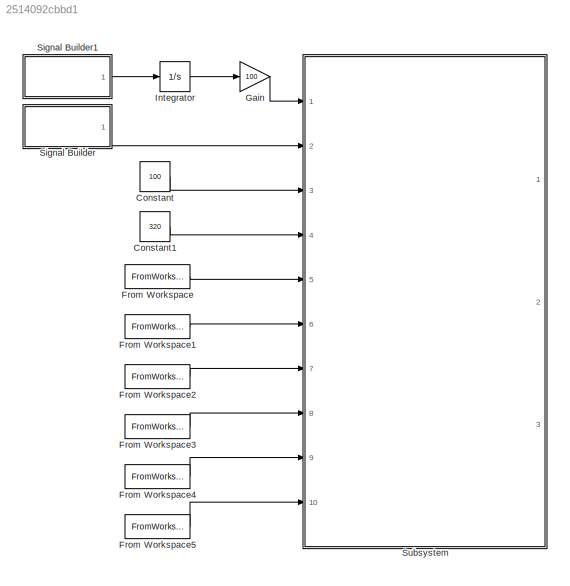
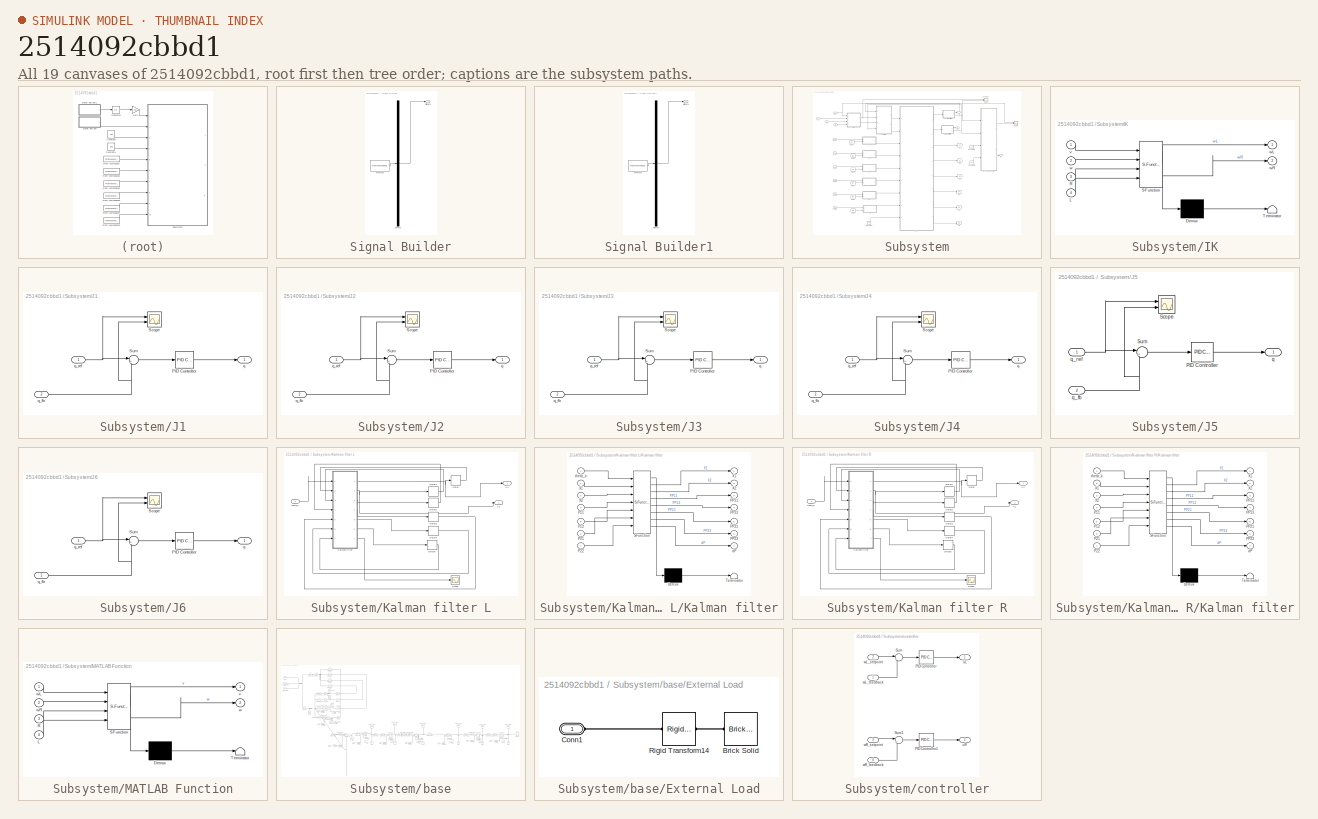
[diagram: thumbnail index - all 19 canvases of the model, root first then tree order]
MODEL slx_2514092cbbd1
KIND model
CONFIG AbsTol = auto
CONFIG EnableMultiTasking = off
CONFIG FixedStep = 0.00005
CONFIG MaxStep = auto
CONFIG MinStep = auto
CONFIG RelTol = 1e-3
CONFIG SampleTimeConstraint = Unconstrained
CONFIG SolverName = FixedStepAuto
CONFIG StartTime = 0.0
CONFIG StopTime = 6
BLOCK [Constant] Constant
  Value = 100
BLOCK [Constant] Constant1
  Value = 320
BLOCK [FromWorkspace] From Workspace
  VariableName = q1dsim
BLOCK [FromWorkspace] From Workspace1
  VariableName = q2dsim
BLOCK [FromWorkspace] From Workspace2
  VariableName = q3dsim
BLOCK [FromWorkspace] From Workspace3
  VariableName = q4dsim
BLOCK [FromWorkspace] From Workspace4
  VariableName = q5dsim
BLOCK [FromWorkspace] From Workspace5
  VariableName = q6dsim
BLOCK [Gain] Gain
  Gain = 100
BLOCK [Integrator] Integrator
  Ports = [1, 1]
BLOCK [SubSystem] Signal Builder
  ClipboardFcn = sigbuilder_block('clipboard');
  CloseFcn = sigbuilder_block('close');
  ContinueFcn = sigbuilder_block('continue');
  CopyFcn = sigbuilder_block('copy');
  DeleteFcn = sigbuilder_block('delete');
  LoadFcn = sigbuilder_block('load');
  MaskHideContents = on
  ModelCloseFcn = sigbuilder_block('modelClose');
  NameChangeFcn = sigbuilder_block('namechange');
  OpenFcn = sigbuilder_block('open',[543 204.75 550.5 399.75 ]);
  PauseFcn = sigbuilder_block('pause');
  Ports = [0, 1]
  PreSaveFcn = sigbuilder_block('preSave');
  RequestExecContextInheritance = off
  StartFcn = sigbuilder_block('start');
  StopFcn = sigbuilder_block('stop');
  Tag = STV Subsys
BLOCK [Demux] Signal Builder/Demux
  DisplayOption = none
  Outputs = 1
  Ports = [1, 1]
  Tag = STV Demux
BLOCK [FromWorkspace] Signal Builder/FromWs
  Tag = STV FromWs
  VariableName = tuvar
BLOCK [Outport] Signal Builder/Signal 1
  Tag = STV Outport
BLOCK [SubSystem] Signal Builder1
  ClipboardFcn = sigbuilder_block('clipboard');
  CloseFcn = sigbuilder_block('close');
  ContinueFcn = sigbuilder_block('continue');
  CopyFcn = sigbuilder_block('copy');
  DeleteFcn = sigbuilder_block('delete');
  LoadFcn = sigbuilder_block('load');
  MaskHideContents = on
  ModelCloseFcn = sigbuilder_block('modelClose');
  NameChangeFcn = sigbuilder_block('namechange');
  OpenFcn = sigbuilder_block('open',[543 204.75 550.5 399.75 ]);
  PauseFcn = sigbuilder_block('pause');
  Ports = [0, 1]
  PreSaveFcn = sigbuilder_block('preSave');
  RequestExecContextInheritance = off
  StartFcn = sigbuilder_block('start');
  StopFcn = sigbuilder_block('stop');
  Tag = STV Subsys
BLOCK [Demux] Signal Builder1/Demux
  DisplayOption = none
  Outputs = 1
  Ports = [1, 1]
  Tag = STV Demux
BLOCK [FromWorkspace] Signal Builder1/FromWs
  Tag = STV FromWs
  VariableName = tuvar
BLOCK [Outport] Signal Builder1/Signal 1
  Tag = STV Outport
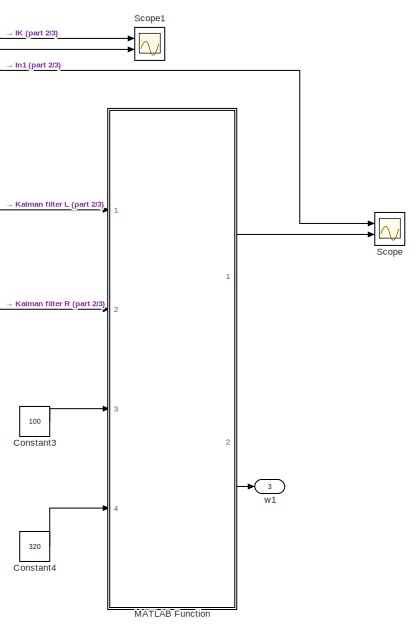
[diagram: Subsystem - part 1/3, top right region]
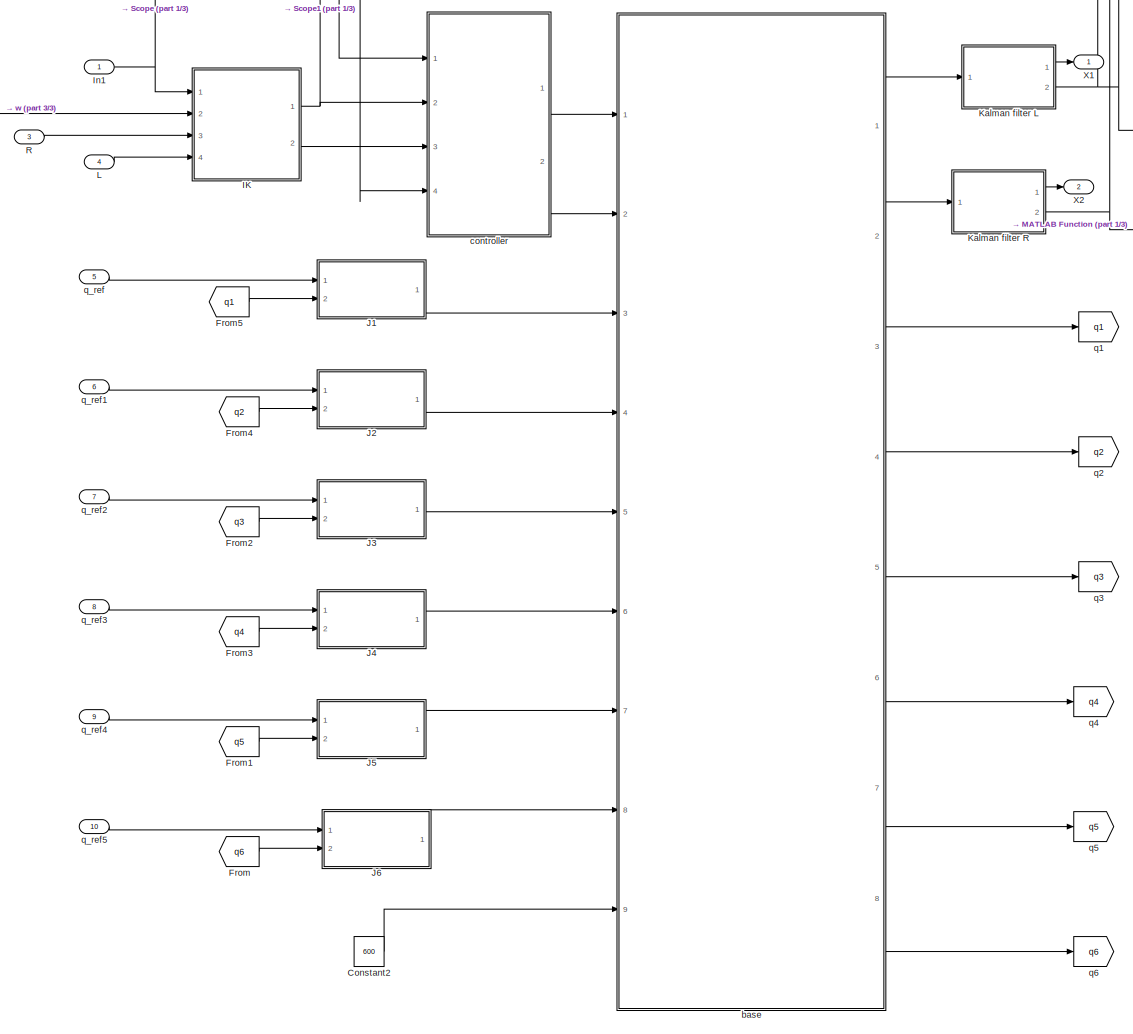
[diagram: Subsystem - part 2/3, center side, full height]
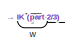
[diagram: Subsystem - part 3/3, top left region]
BLOCK [SubSystem] Subsystem
  Ports = [10, 3]
  RequestExecContextInheritance = off
BLOCK [Constant] Subsystem/Constant2
  Value = 600
BLOCK [Constant] Subsystem/Constant3
  Value = 100
BLOCK [Constant] Subsystem/Constant4
  Value = 320
BLOCK [From] Subsystem/From
  GotoTag = q6
BLOCK [From] Subsystem/From1
  GotoTag = q5
BLOCK [From] Subsystem/From2
  GotoTag = q3
BLOCK [From] Subsystem/From3
  GotoTag = q4
BLOCK [From] Subsystem/From4
  GotoTag = q2
BLOCK [From] Subsystem/From5
  GotoTag = q1
BLOCK [SubSystem] Subsystem/IK
  ErrorFcn = Stateflow.Translate.translate
  PermitHierarchicalResolution = ExplicitOnly
  Ports = [4, 2]
  RequestExecContextInheritance = off
  SFBlockType = MATLAB Function
  TreatAsAtomicUnit = on
BLOCK [Demux] Subsystem/IK/ Demux 
  Outputs = 1
  Ports = [1, 1]
BLOCK [S-Function] Subsystem/IK/ SFunction 
  EnableBusSupport = on
  FunctionName = sf_sfun
  PortCounts = [4 3]
  Ports = [4, 3]
  SFcnIsStateOwnerBlock = off
  SFunctionDeploymentMode = off
  Tag = Stateflow S-Function 2
BLOCK [Terminator] Subsystem/IK/ Terminator 
BLOCK [Inport] Subsystem/IK/L
  Port = 4
BLOCK [Inport] Subsystem/IK/R
  Port = 3
BLOCK [Inport] Subsystem/IK/v
BLOCK [Inport] Subsystem/IK/w
  Port = 2
BLOCK [Outport] Subsystem/IK/wL
BLOCK [Outport] Subsystem/IK/wR
  Port = 2
BLOCK [Inport] Subsystem/In1
BLOCK [SubSystem] Subsystem/J1
  Ports = [2, 1]
  RequestExecContextInheritance = off
BLOCK [Reference] Subsystem/J1/PID Controller  REF=slpidlib/PID Controller
  Ports = [1, 1]
  SourceBlock = slpidlib/PID Controller
  SourceProductBaseCode = SL
  SourceType = PID 1dof
BLOCK [Scope] Subsystem/J1/Scope
  Floating = off
  NumInputPorts = 2
  Ports = [2]
  ScopeSpecificationString = Simulink.scopes.TimeScopeBlockCfg('CurrentConfiguration', extmgr.ConfigurationSet(extmgr.Configuration('Core','General UI',true),extmgr.Configuration('Core','Source UI',true),extmgr.Configuration('Sources','WiredSimulink',true),extmgr.Configuration('Visuals','Time Domain',true,'SerializedDisplays',{struct('MinYLimReal','-0.13088','MaxYLimReal','1.17788','YLabelReal','','MinYLimMag','0.00000','MaxY...<+1428ch>  <repeated x4 — deduplicated; at blocks: Scope>
BLOCK [Sum] Subsystem/J1/Sum
  Inputs = |+-
  Ports = [2, 1]
BLOCK [Outport] Subsystem/J1/q
BLOCK [Inport] Subsystem/J1/q_fb
  Port = 2
BLOCK [Inport] Subsystem/J1/q_ref
BLOCK [SubSystem] Subsystem/J2
  Ports = [2, 1]
  RequestExecContextInheritance = off
BLOCK [Reference] Subsystem/J2/PID Controller  REF=slpidlib/PID Controller
  Ports = [1, 1]
  SourceBlock = slpidlib/PID Controller
  SourceProductBaseCode = SL
  SourceType = PID 1dof
BLOCK [Scope] Subsystem/J2/Scope
  Floating = off
  NumInputPorts = 2
  Ports = [2]
  ScopeSpecificationString = Simulink.scopes.TimeScopeBlockCfg('CurrentConfiguration', extmgr.ConfigurationSet(extmgr.Configuration('Core','General UI',true),extmgr.Configuration('Core','Source UI',true),extmgr.Configuration('Sources','WiredSimulink',true),extmgr.Configuration('Visuals','Time Domain',true,'SerializedDisplays',{struct('MinYLimReal','-1.17788','MaxYLimReal','0.13088','YLabelReal','','MinYLimMag','0.00000','MaxY...<+1428ch>
BLOCK [Sum] Subsystem/J2/Sum
  Inputs = |+-
  Ports = [2, 1]
BLOCK [Outport] Subsystem/J2/q
BLOCK [Inport] Subsystem/J2/q_fb
  Port = 2
BLOCK [Inport] Subsystem/J2/q_ref
BLOCK [SubSystem] Subsystem/J3
  Ports = [2, 1]
  RequestExecContextInheritance = off
BLOCK [Reference] Subsystem/J3/PID Controller  REF=slpidlib/PID Controller
  Ports = [1, 1]
  SourceBlock = slpidlib/PID Controller
  SourceProductBaseCode = SL
  SourceType = PID 1dof
BLOCK [Scope] Subsystem/J3/Scope
  Floating = off
  NumInputPorts = 2
  Ports = [2]
BLOCK [Sum] Subsystem/J3/Sum
  Inputs = |+-
  Ports = [2, 1]
BLOCK [Outport] Subsystem/J3/q
BLOCK [Inport] Subsystem/J3/q_fb
  Port = 2
BLOCK [Inport] Subsystem/J3/q_ref
BLOCK [SubSystem] Subsystem/J4
  Ports = [2, 1]
  RequestExecContextInheritance = off
BLOCK [Reference] Subsystem/J4/PID Controller  REF=slpidlib/PID Controller
  Ports = [1, 1]
  SourceBlock = slpidlib/PID Controller
  SourceProductBaseCode = SL
  SourceType = PID 1dof
BLOCK [Scope] Subsystem/J4/Scope
  Floating = off
  NumInputPorts = 2
  Ports = [2]
  ScopeSpecificationString = Simulink.scopes.TimeScopeBlockCfg('CurrentConfiguration', extmgr.ConfigurationSet(extmgr.Configuration('Core','General UI',true),extmgr.Configuration('Core','Source UI',true),extmgr.Configuration('Sources','WiredSimulink',true),extmgr.Configuration('Visuals','Time Domain',true,'SerializedDisplays',{struct('MinYLimReal','-1.17788','MaxYLimReal','0.13088','YLabelReal','','MinYLimMag','0.00000','MaxY...<+1428ch>
BLOCK [Sum] Subsystem/J4/Sum
  Inputs = |+-
  Ports = [2, 1]
BLOCK [Outport] Subsystem/J4/q
BLOCK [Inport] Subsystem/J4/q_fb
  Port = 2
BLOCK [Inport] Subsystem/J4/q_ref
BLOCK [SubSystem] Subsystem/J5
  Ports = [2, 1]
  RequestExecContextInheritance = off
BLOCK [Reference] Subsystem/J5/PID Controller  REF=slpidlib/PID Controller
  Ports = [1, 1]
  SourceBlock = slpidlib/PID Controller
  SourceProductBaseCode = SL
  SourceType = PID 1dof
BLOCK [Scope] Subsystem/J5/Scope
  Floating = off
  NumInputPorts = 2
  Ports = [2]
BLOCK [Sum] Subsystem/J5/Sum
  Inputs = |+-
  Ports = [2, 1]
BLOCK [Outport] Subsystem/J5/q
BLOCK [Inport] Subsystem/J5/q_fb
  Port = 2
BLOCK [Inport] Subsystem/J5/q_ref
BLOCK [SubSystem] Subsystem/J6
  Ports = [2, 1]
  RequestExecContextInheritance = off
BLOCK [Reference] Subsystem/J6/PID Controller  REF=slpidlib/PID Controller
  Ports = [1, 1]
  SourceBlock = slpidlib/PID Controller
  SourceProductBaseCode = SL
  SourceType = PID 1dof
BLOCK [Scope] Subsystem/J6/Scope
  Floating = off
  NumInputPorts = 2
  Ports = [2]
BLOCK [Sum] Subsystem/J6/Sum
  Inputs = |+-
  Ports = [2, 1]
BLOCK [Outport] Subsystem/J6/q
BLOCK [Inport] Subsystem/J6/q_fb
  Port = 2
BLOCK [Inport] Subsystem/J6/q_ref
BLOCK [SubSystem] Subsystem/Kalman filter L
  Ports = [1, 2]
  RequestExecContextInheritance = off
BLOCK [Delay] Subsystem/Kalman filter L/Delay
  DelayLength = 1
  InputPortMap = u0
  Ports = [1, 1]
  SampleTime = 0.0001
BLOCK [Delay] Subsystem/Kalman filter L/Delay1
  DelayLength = 1
  InputPortMap = u0
  Ports = [1, 1]
  SampleTime = 0.0001
BLOCK [Delay] Subsystem/Kalman filter L/Delay2
  DelayLength = 1
  InputPortMap = u0
  Ports = [1, 1]
  SampleTime = 0.0001
BLOCK [Delay] Subsystem/Kalman filter L/Delay3
  DelayLength = 1
  InputPortMap = u0
  Ports = [1, 1]
  SampleTime = 0.0001
BLOCK [Delay] Subsystem/Kalman filter L/Delay4
  DelayLength = 1
  InputPortMap = u0
  Ports = [1, 1]
  SampleTime = 0.0001
BLOCK [Delay] Subsystem/Kalman filter L/Delay5
  DelayLength = 1
  InputPortMap = u0
  Ports = [1, 1]
  SampleTime = 0.0001
BLOCK [SubSystem] Subsystem/Kalman filter L/Kalman filter
  ErrorFcn = Stateflow.Translate.translate
  PermitHierarchicalResolution = ExplicitOnly
  Ports = [7, 7]
  RequestExecContextInheritance = off
  SFBlockType = MATLAB Function
  TreatAsAtomicUnit = on
BLOCK [Demux] Subsystem/Kalman filter L/Kalman filter/ Demux 
  Outputs = 1
  Ports = [1, 1]
BLOCK [S-Function] Subsystem/Kalman filter L/Kalman filter/ SFunction 
  EnableBusSupport = on
  FunctionName = sf_sfun
  PortCounts = [7 8]
  Ports = [7, 8]
  SFcnIsStateOwnerBlock = off
  SFunctionDeploymentMode = off
  Tag = Stateflow S-Function 1
BLOCK [Terminator] Subsystem/Kalman filter L/Kalman filter/ Terminator 
BLOCK [Inport] Subsystem/Kalman filter L/Kalman filter/P11
  Port = 4
BLOCK [Inport] Subsystem/Kalman filter L/Kalman filter/P12
  Port = 5
BLOCK [Inport] Subsystem/Kalman filter L/Kalman filter/P21
  Port = 6
BLOCK [Inport] Subsystem/Kalman filter L/Kalman filter/P22
  Port = 7
BLOCK [Outport] Subsystem/Kalman filter L/Kalman filter/PP11
  Port = 3
BLOCK [Outport] Subsystem/Kalman filter L/Kalman filter/PP12
  Port = 4
BLOCK [Outport] Subsystem/Kalman filter L/Kalman filter/PP21
  Port = 5
BLOCK [Outport] Subsystem/Kalman filter L/Kalman filter/PP22
  Port = 6
BLOCK [Outport] Subsystem/Kalman filter L/Kalman filter/X1
BLOCK [Inport] Subsystem/Kalman filter L/Kalman filter/X1 
  Port = 2
BLOCK [Outport] Subsystem/Kalman filter L/Kalman filter/X2
  Port = 2
BLOCK [Inport] Subsystem/Kalman filter L/Kalman filter/X2 
  Port = 3
BLOCK [Outport] Subsystem/Kalman filter L/Kalman filter/dP
  Port = 7
BLOCK [Inport] Subsystem/Kalman filter L/Kalman filter/theta_k
BLOCK [Scope] Subsystem/Kalman filter L/Scope
  Floating = off
  NumInputPorts = 1
  Ports = [1]
  ScopeSpecificationString = Simulink.scopes.TimeScopeBlockCfg('CurrentConfiguration', extmgr.ConfigurationSet(extmgr.Configuration('Core','General UI',true),extmgr.Configuration('Core','Source UI',true),extmgr.Configuration('Sources','WiredSimulink',true,'DataLoggingVariableName','ScopeData1'),extmgr.Configuration('Visuals','Time Domain',true,'SerializedDisplays',{struct('MinYLimReal','-0.00000000008','MaxYLimReal','0.000000...<+1478ch>
BLOCK [Outport] Subsystem/Kalman filter L/X1
BLOCK [Outport] Subsystem/Kalman filter L/X2
  Port = 2
BLOCK [Inport] Subsystem/Kalman filter L/theta_k
BLOCK [SubSystem] Subsystem/Kalman filter R
  Ports = [1, 2]
  RequestExecContextInheritance = off
BLOCK [Delay] Subsystem/Kalman filter R/Delay
  DelayLength = 1
  InputPortMap = u0
  Ports = [1, 1]
  SampleTime = 0.0001
BLOCK [Delay] Subsystem/Kalman filter R/Delay1
  DelayLength = 1
  InputPortMap = u0
  Ports = [1, 1]
  SampleTime = 0.0001
BLOCK [Delay] Subsystem/Kalman filter R/Delay2
  DelayLength = 1
  InputPortMap = u0
  Ports = [1, 1]
  SampleTime = 0.0001
BLOCK [Delay] Subsystem/Kalman filter R/Delay3
  DelayLength = 1
  InputPortMap = u0
  Ports = [1, 1]
  SampleTime = 0.0001
BLOCK [Delay] Subsystem/Kalman filter R/Delay4
  DelayLength = 1
  InputPortMap = u0
  Ports = [1, 1]
  SampleTime = 0.0001
BLOCK [Delay] Subsystem/Kalman filter R/Delay5
  DelayLength = 1
  InputPortMap = u0
  Ports = [1, 1]
  SampleTime = 0.0001
BLOCK [SubSystem] Subsystem/Kalman filter R/Kalman filter
  ErrorFcn = Stateflow.Translate.translate
  PermitHierarchicalResolution = ExplicitOnly
  Ports = [7, 7]
  RequestExecContextInheritance = off
  SFBlockType = MATLAB Function
  TreatAsAtomicUnit = on
BLOCK [Demux] Subsystem/Kalman filter R/Kalman filter/ Demux 
  Outputs = 1
  Ports = [1, 1]
BLOCK [S-Function] Subsystem/Kalman filter R/Kalman filter/ SFunction 
  EnableBusSupport = on
  FunctionName = sf_sfun
  PortCounts = [7 8]
  Ports = [7, 8]
  SFcnIsStateOwnerBlock = off
  SFunctionDeploymentMode = off
  Tag = Stateflow S-Function 3
BLOCK [Terminator] Subsystem/Kalman filter R/Kalman filter/ Terminator 
BLOCK [Inport] Subsystem/Kalman filter R/Kalman filter/P11
  Port = 4
BLOCK [Inport] Subsystem/Kalman filter R/Kalman filter/P12
  Port = 5
BLOCK [Inport] Subsystem/Kalman filter R/Kalman filter/P21
  Port = 6
BLOCK [Inport] Subsystem/Kalman filter R/Kalman filter/P22
  Port = 7
BLOCK [Outport] Subsystem/Kalman filter R/Kalman filter/PP11
  Port = 3
BLOCK [Outport] Subsystem/Kalman filter R/Kalman filter/PP12
  Port = 4
BLOCK [Outport] Subsystem/Kalman filter R/Kalman filter/PP21
  Port = 5
BLOCK [Outport] Subsystem/Kalman filter R/Kalman filter/PP22
  Port = 6
BLOCK [Outport] Subsystem/Kalman filter R/Kalman filter/X1
BLOCK [Inport] Subsystem/Kalman filter R/Kalman filter/X1 
  Port = 2
BLOCK [Outport] Subsystem/Kalman filter R/Kalman filter/X2
  Port = 2
BLOCK [Inport] Subsystem/Kalman filter R/Kalman filter/X2 
  Port = 3
BLOCK [Outport] Subsystem/Kalman filter R/Kalman filter/dP
  Port = 7
BLOCK [Inport] Subsystem/Kalman filter R/Kalman filter/theta_k
BLOCK [Scope] Subsystem/Kalman filter R/Scope
  Floating = off
  NumInputPorts = 1
  Ports = [1]
  ScopeSpecificationString = Simulink.scopes.TimeScopeBlockCfg('CurrentConfiguration', extmgr.ConfigurationSet(extmgr.Configuration('Core','General UI',true),extmgr.Configuration('Core','Source UI',true),extmgr.Configuration('Sources','WiredSimulink',true,'DataLoggingVariableName','ScopeData1'),extmgr.Configuration('Visuals','Time Domain',true,'SerializedDisplays',{struct('MinYLimReal','-0.00000000008','MaxYLimReal','0.000000...<+1465ch>
BLOCK [Outport] Subsystem/Kalman filter R/X1
BLOCK [Outport] Subsystem/Kalman filter R/X2
  Port = 2
BLOCK [Inport] Subsystem/Kalman filter R/theta_k
BLOCK [Inport] Subsystem/L
  Port = 4
BLOCK [SubSystem] Subsystem/MATLAB Function
  ErrorFcn = Stateflow.Translate.translate
  PermitHierarchicalResolution = ExplicitOnly
  Ports = [4, 2]
  RequestExecContextInheritance = off
  SFBlockType = MATLAB Function
  TreatAsAtomicUnit = on
BLOCK [Demux] Subsystem/MATLAB Function/ Demux 
  Outputs = 1
  Ports = [1, 1]
BLOCK [S-Function] Subsystem/MATLAB Function/ SFunction 
  EnableBusSupport = on
  FunctionName = sf_sfun
  PortCounts = [4 3]
  Ports = [4, 3]
  SFcnIsStateOwnerBlock = off
  SFunctionDeploymentMode = off
  Tag = Stateflow S-Function 4
BLOCK [Terminator] Subsystem/MATLAB Function/ Terminator 
BLOCK [Inport] Subsystem/MATLAB Function/L
  Port = 4
BLOCK [Inport] Subsystem/MATLAB Function/R
  Port = 3
BLOCK [Outport] Subsystem/MATLAB Function/v
BLOCK [Outport] Subsystem/MATLAB Function/w
  Port = 2
BLOCK [Inport] Subsystem/MATLAB Function/wL
BLOCK [Inport] Subsystem/MATLAB Function/wR
  Port = 2
BLOCK [Inport] Subsystem/R
  Port = 3
BLOCK [Scope] Subsystem/Scope
  Floating = off
  NumInputPorts = 2
  Ports = [2]
  ScopeSpecificationString = Simulink.scopes.TimeScopeBlockCfg('CurrentConfiguration', extmgr.ConfigurationSet(extmgr.Configuration('Core','General UI',true),extmgr.Configuration('Core','Source UI',true),extmgr.Configuration('Sources','WiredSimulink',true,'DataLoggingVariableName','ScopeData1'),extmgr.Configuration('Visuals','Time Domain',true,'SerializedDisplays',{struct('MinYLimReal','-58.91335','MaxYLimReal','478.76815','Y...<+1422ch>
BLOCK [Scope] Subsystem/Scope1
  Floating = off
  NumInputPorts = 2
  Ports = [2]
  ScopeSpecificationString = Simulink.scopes.TimeScopeBlockCfg('CurrentConfiguration', extmgr.ConfigurationSet(extmgr.Configuration('Core','General UI',true),extmgr.Configuration('Core','Source UI',true),extmgr.Configuration('Sources','WiredSimulink',true,'DataLoggingVariableName','ScopeData2'),extmgr.Configuration('Visuals','Time Domain',true,'SerializedDisplays',{struct('MinYLimReal','-0.01708','MaxYLimReal','0.15376','YLab...<+1415ch>
BLOCK [Outport] Subsystem/X1
BLOCK [Outport] Subsystem/X2
  Port = 2
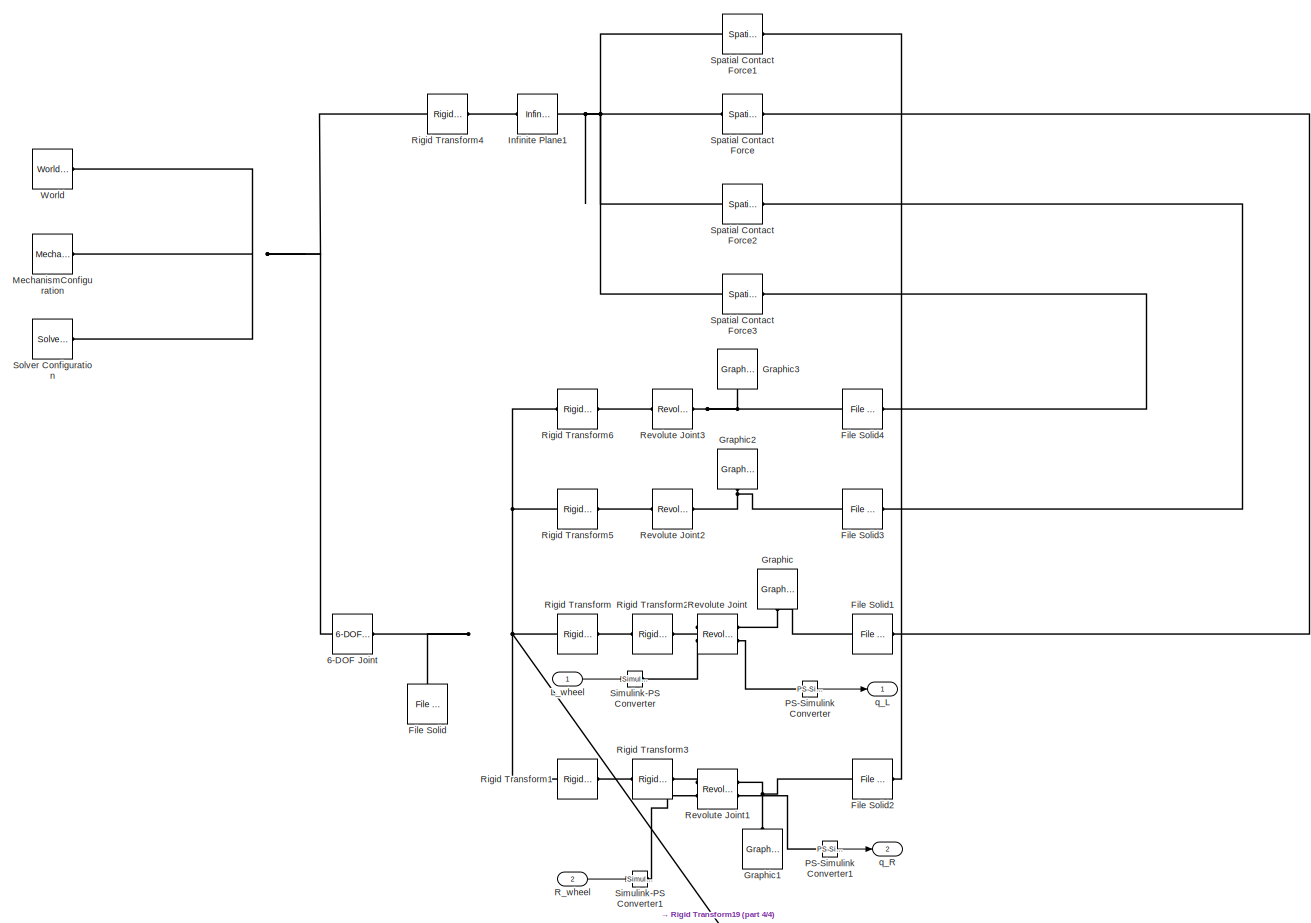
[diagram: Subsystem/base - part 1/4, top left region]
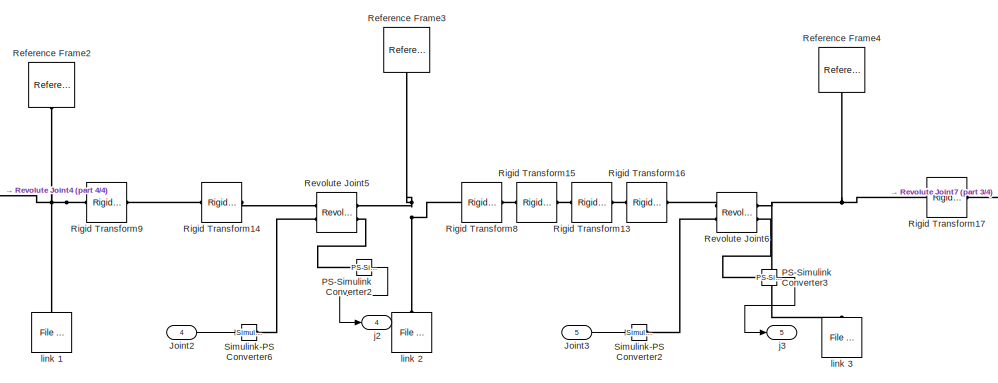
[diagram: Subsystem/base - part 2/4, central region]
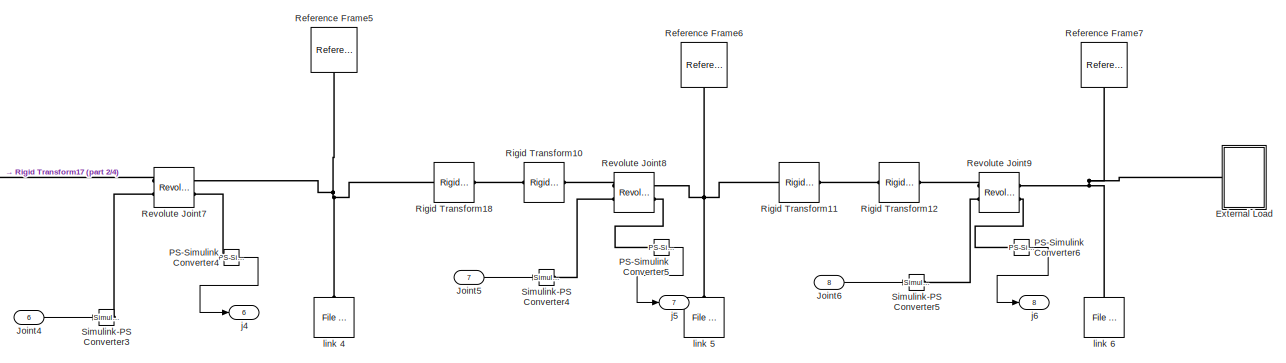
[diagram: Subsystem/base - part 3/4, middle right region]
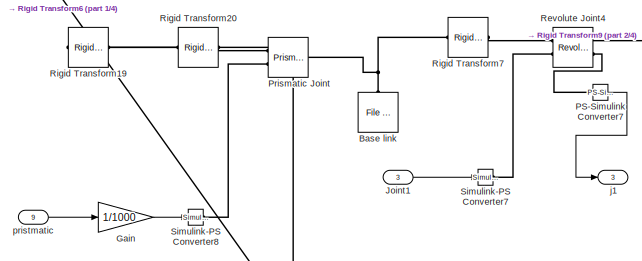
[diagram: Subsystem/base - part 4/4, middle left region]
BLOCK [SubSystem] Subsystem/base
  Ports = [9, 8]
  RequestExecContextInheritance = off
BLOCK [Reference] Subsystem/base/6-DOF Joint  REF=sm_lib/Joints/6-DOF Joint
  Ports = [0, 0, 0, 0, 0, 1, 1]
  SourceBlock = sm_lib/Joints/6-DOF Joint
  SourceProductBaseCode = MS
  SourceType = 6-DOF Joint
BLOCK [Reference] Subsystem/base/Base link  REF=sm_lib/Body Elements/File Solid
  NameLocation = right
  Ports = [0, 0, 0, 0, 0, 0, 1]
  SourceBlock = sm_lib/Body Elements/File Solid
  SourceProductBaseCode = MS
  SourceType = File Solid
BLOCK [SubSystem] Subsystem/base/External Load
  Ports = [0, 0, 0, 0, 0, 1]
  RequestExecContextInheritance = off
BLOCK [Reference] Subsystem/base/External Load/Brick Solid  REF=sm_lib/Body Elements/Brick Solid
  NameLocation = top
  Ports = [0, 0, 0, 0, 0, 0, 1]
  SourceBlock = sm_lib/Body Elements/Brick Solid
  SourceProductBaseCode = MS
  SourceType = Brick Solid
BLOCK [PMIOPort] Subsystem/base/External Load/Conn1
  Side = Left
BLOCK [Reference] Subsystem/base/External Load/Rigid Transform14  REF=sm_lib/Frames and
Transforms/Rigid
Transform
  Ports = [0, 0, 0, 0, 0, 1, 1]
  SourceBlock = sm_lib/Frames and\nTransforms/Rigid\nTransform
  SourceProductBaseCode = MS
  SourceType = Rigid\nTransform
BLOCK [Reference] Subsystem/base/File Solid  REF=sm_lib/Body Elements/File Solid
  NameLocation = right
  Ports = [0, 0, 0, 0, 0, 0, 1]
  SourceBlock = sm_lib/Body Elements/File Solid
  SourceProductBaseCode = MS
  SourceType = File Solid
BLOCK [Reference] Subsystem/base/File Solid1  REF=sm_lib/Body Elements/File Solid
  NameLocation = top
  Ports = [0, 0, 0, 0, 0, 1, 1]
  SourceBlock = sm_lib/Body Elements/File Solid
  SourceProductBaseCode = MS
  SourceType = File Solid
BLOCK [Reference] Subsystem/base/File Solid2  REF=sm_lib/Body Elements/File Solid
  NameLocation = top
  Ports = [0, 0, 0, 0, 0, 1, 1]
  SourceBlock = sm_lib/Body Elements/File Solid
  SourceProductBaseCode = MS
  SourceType = File Solid
BLOCK [Reference] Subsystem/base/File Solid3  REF=sm_lib/Body Elements/File Solid
  NameLocation = top
  Ports = [0, 0, 0, 0, 0, 1, 1]
  SourceBlock = sm_lib/Body Elements/File Solid
  SourceProductBaseCode = MS
  SourceType = File Solid
BLOCK [Reference] Subsystem/base/File Solid4  REF=sm_lib/Body Elements/File Solid
  NameLocation = top
  Ports = [0, 0, 0, 0, 0, 1, 1]
  SourceBlock = sm_lib/Body Elements/File Solid
  SourceProductBaseCode = MS
  SourceType = File Solid
BLOCK [Gain] Subsystem/base/Gain
  Gain = 1/1000
BLOCK [Reference] Subsystem/base/Graphic  REF=sm_lib/Body Elements/Graphic
  NameLocation = left
  Ports = [0, 0, 0, 0, 0, 0, 1]
  SourceBlock = sm_lib/Body Elements/Graphic
  SourceProductBaseCode = MS
  SourceType = Graphic
BLOCK [Reference] Subsystem/base/Graphic1  REF=sm_lib/Body Elements/Graphic
  NameLocation = right
  Ports = [0, 0, 0, 0, 0, 0, 1]
  SourceBlock = sm_lib/Body Elements/Graphic
  SourceProductBaseCode = MS
  SourceType = Graphic
BLOCK [Reference] Subsystem/base/Graphic2  REF=sm_lib/Body Elements/Graphic
  NameLocation = left
  Ports = [0, 0, 0, 0, 0, 0, 1]
  SourceBlock = sm_lib/Body Elements/Graphic
  SourceProductBaseCode = MS
  SourceType = Graphic
BLOCK [Reference] Subsystem/base/Graphic3  REF=sm_lib/Body Elements/Graphic
  NameLocation = left
  Ports = [0, 0, 0, 0, 0, 0, 1]
  SourceBlock = sm_lib/Body Elements/Graphic
  SourceProductBaseCode = MS
  SourceType = Graphic
BLOCK [Reference] Subsystem/base/Infinite Plane1  REF=sm_lib/Curves and Surfaces/Infinite Plane
  Ports = [0, 0, 0, 0, 0, 1, 1]
  SourceBlock = sm_lib/Curves and Surfaces/Infinite Plane
  SourceProductBaseCode = MS
  SourceType = Infinite Plane
BLOCK [Inport] Subsystem/base/Joint1
  Port = 3
BLOCK [Inport] Subsystem/base/Joint2
  Port = 4
BLOCK [Inport] Subsystem/base/Joint3
  Port = 5
BLOCK [Inport] Subsystem/base/Joint4
  Port = 6
BLOCK [Inport] Subsystem/base/Joint5
  Port = 7
BLOCK [Inport] Subsystem/base/Joint6
  Port = 8
BLOCK [Inport] Subsystem/base/L_wheel
BLOCK [Reference] Subsystem/base/MechanismConfiguration  REF=sm_lib/Utilities/Mechanism
Configuration
  Ports = [0, 0, 0, 0, 0, 0, 1]
  SourceBlock = sm_lib/Utilities/Mechanism\nConfiguration
  SourceProductBaseCode = MS
  SourceType = Mechanism\nConfiguration
BLOCK [Reference] Subsystem/base/PS-Simulink Converter  REF=nesl_utility/PS-Simulink
Converter
  Ports = [0, 1, 0, 0, 0, 1]
  SourceBlock = nesl_utility/PS-Simulink\nConverter
  SourceProductBaseCode = PW,SS
  SourceType = PS-Simulink\nConverter
BLOCK [Reference] Subsystem/base/PS-Simulink Converter1  REF=nesl_utility/PS-Simulink
Converter
  Ports = [0, 1, 0, 0, 0, 1]
  SourceBlock = nesl_utility/PS-Simulink\nConverter
  SourceProductBaseCode = PW,SS
  SourceType = PS-Simulink\nConverter
BLOCK [Reference] Subsystem/base/PS-Simulink Converter2  REF=nesl_utility/PS-Simulink
Converter
  Ports = [0, 1, 0, 0, 0, 1]
  SourceBlock = nesl_utility/PS-Simulink\nConverter
  SourceProductBaseCode = PW,SS
  SourceType = PS-Simulink\nConverter
BLOCK [Reference] Subsystem/base/PS-Simulink Converter3  REF=nesl_utility/PS-Simulink
Converter
  Ports = [0, 1, 0, 0, 0, 1]
  SourceBlock = nesl_utility/PS-Simulink\nConverter
  SourceProductBaseCode = PW,SS
  SourceType = PS-Simulink\nConverter
BLOCK [Reference] Subsystem/base/PS-Simulink Converter4  REF=nesl_utility/PS-Simulink
Converter
  Ports = [0, 1, 0, 0, 0, 1]
  SourceBlock = nesl_utility/PS-Simulink\nConverter
  SourceProductBaseCode = PW,SS
  SourceType = PS-Simulink\nConverter
BLOCK [Reference] Subsystem/base/PS-Simulink Converter5  REF=nesl_utility/PS-Simulink
Converter
  Ports = [0, 1, 0, 0, 0, 1]
  SourceBlock = nesl_utility/PS-Simulink\nConverter
  SourceProductBaseCode = PW,SS
  SourceType = PS-Simulink\nConverter
BLOCK [Reference] Subsystem/base/PS-Simulink Converter6  REF=nesl_utility/PS-Simulink
Converter
  Ports = [0, 1, 0, 0, 0, 1]
  SourceBlock = nesl_utility/PS-Simulink\nConverter
  SourceProductBaseCode = PW,SS
  SourceType = PS-Simulink\nConverter
BLOCK [Reference] Subsystem/base/PS-Simulink Converter7  REF=nesl_utility/PS-Simulink
Converter
  Ports = [0, 1, 0, 0, 0, 1]
  SourceBlock = nesl_utility/PS-Simulink\nConverter
  SourceProductBaseCode = PW,SS
  SourceType = PS-Simulink\nConverter
BLOCK [Reference] Subsystem/base/Prismatic Joint  REF=sm_lib/Joints/Prismatic
Joint
  Ports = [0, 0, 0, 0, 0, 2, 1]
  SourceBlock = sm_lib/Joints/Prismatic\nJoint
  SourceProductBaseCode = MS
  SourceType = Prismatic\nJoint
BLOCK [Inport] Subsystem/base/R_wheel
  Port = 2
BLOCK [Reference] Subsystem/base/Reference Frame2  REF=sm_lib/Frames and
Transforms/Reference
Frame
  NameLocation = left
  Ports = [0, 0, 0, 0, 0, 0, 1]
  SourceBlock = sm_lib/Frames and\nTransforms/Reference\nFrame
  SourceProductBaseCode = MS
  SourceType = Reference\nFrame
BLOCK [Reference] Subsystem/base/Reference Frame3  REF=sm_lib/Frames and
Transforms/Reference
Frame
  NameLocation = left
  Ports = [0, 0, 0, 0, 0, 0, 1]
  SourceBlock = sm_lib/Frames and\nTransforms/Reference\nFrame
  SourceProductBaseCode = MS
  SourceType = Reference\nFrame
BLOCK [Reference] Subsystem/base/Reference Frame4  REF=sm_lib/Frames and
Transforms/Reference
Frame
  NameLocation = left
  Ports = [0, 0, 0, 0, 0, 0, 1]
  SourceBlock = sm_lib/Frames and\nTransforms/Reference\nFrame
  SourceProductBaseCode = MS
  SourceType = Reference\nFrame
BLOCK [Reference] Subsystem/base/Reference Frame5  REF=sm_lib/Frames and
Transforms/Reference
Frame
  NameLocation = left
  Ports = [0, 0, 0, 0, 0, 0, 1]
  SourceBlock = sm_lib/Frames and\nTransforms/Reference\nFrame
  SourceProductBaseCode = MS
  SourceType = Reference\nFrame
BLOCK [Reference] Subsystem/base/Reference Frame6  REF=sm_lib/Frames and
Transforms/Reference
Frame
  NameLocation = left
  Ports = [0, 0, 0, 0, 0, 0, 1]
  SourceBlock = sm_lib/Frames and\nTransforms/Reference\nFrame
  SourceProductBaseCode = MS
  SourceType = Reference\nFrame
BLOCK [Reference] Subsystem/base/Reference Frame7  REF=sm_lib/Frames and
Transforms/Reference
Frame
  NameLocation = left
  Ports = [0, 0, 0, 0, 0, 0, 1]
  SourceBlock = sm_lib/Frames and\nTransforms/Reference\nFrame
  SourceProductBaseCode = MS
  SourceType = Reference\nFrame
BLOCK [Reference] Subsystem/base/Revolute Joint  REF=sm_lib/Joints/Revolute Joint
  Ports = [0, 0, 0, 0, 0, 2, 2]
  SourceBlock = sm_lib/Joints/Revolute Joint
  SourceProductBaseCode = MS
  SourceType = Revolute Joint
BLOCK [Reference] Subsystem/base/Revolute Joint1  REF=sm_lib/Joints/Revolute Joint
  Ports = [0, 0, 0, 0, 0, 2, 2]
  SourceBlock = sm_lib/Joints/Revolute Joint
  SourceProductBaseCode = MS
  SourceType = Revolute Joint
BLOCK [Reference] Subsystem/base/Revolute Joint2  REF=sm_lib/Joints/Revolute Joint
  Ports = [0, 0, 0, 0, 0, 1, 1]
  SourceBlock = sm_lib/Joints/Revolute Joint
  SourceProductBaseCode = MS
  SourceType = Revolute Joint
BLOCK [Reference] Subsystem/base/Revolute Joint3  REF=sm_lib/Joints/Revolute Joint
  Ports = [0, 0, 0, 0, 0, 1, 1]
  SourceBlock = sm_lib/Joints/Revolute Joint
  SourceProductBaseCode = MS
  SourceType = Revolute Joint
BLOCK [Reference] Subsystem/base/Revolute Joint4  REF=sm_lib/Joints/Revolute Joint
  Ports = [0, 0, 0, 0, 0, 2, 2]
  SourceBlock = sm_lib/Joints/Revolute Joint
  SourceProductBaseCode = MS
  SourceType = Revolute Joint
BLOCK [Reference] Subsystem/base/Revolute Joint5  REF=sm_lib/Joints/Revolute Joint
  Ports = [0, 0, 0, 0, 0, 2, 2]
  SourceBlock = sm_lib/Joints/Revolute Joint
  SourceProductBaseCode = MS
  SourceType = Revolute Joint
BLOCK [Reference] Subsystem/base/Revolute Joint6  REF=sm_lib/Joints/Revolute Joint
  Ports = [0, 0, 0, 0, 0, 2, 2]
  SourceBlock = sm_lib/Joints/Revolute Joint
  SourceProductBaseCode = MS
  SourceType = Revolute Joint
BLOCK [Reference] Subsystem/base/Revolute Joint7  REF=sm_lib/Joints/Revolute Joint
  Ports = [0, 0, 0, 0, 0, 2, 2]
  SourceBlock = sm_lib/Joints/Revolute Joint
  SourceProductBaseCode = MS
  SourceType = Revolute Joint
BLOCK [Reference] Subsystem/base/Revolute Joint8  REF=sm_lib/Joints/Revolute Joint
  Ports = [0, 0, 0, 0, 0, 2, 2]
  SourceBlock = sm_lib/Joints/Revolute Joint
  SourceProductBaseCode = MS
  SourceType = Revolute Joint
BLOCK [Reference] Subsystem/base/Revolute Joint9  REF=sm_lib/Joints/Revolute Joint
  Ports = [0, 0, 0, 0, 0, 2, 2]
  SourceBlock = sm_lib/Joints/Revolute Joint
  SourceProductBaseCode = MS
  SourceType = Revolute Joint
BLOCK [Reference] Subsystem/base/Rigid Transform  REF=sm_lib/Frames and
Transforms/Rigid
Transform
  Ports = [0, 0, 0, 0, 0, 1, 1]
  SourceBlock = sm_lib/Frames and\nTransforms/Rigid\nTransform
  SourceProductBaseCode = MS
  SourceType = Rigid\nTransform
BLOCK [Reference] Subsystem/base/Rigid Transform1  REF=sm_lib/Frames and
Transforms/Rigid
Transform
  Ports = [0, 0, 0, 0, 0, 1, 1]
  SourceBlock = sm_lib/Frames and\nTransforms/Rigid\nTransform
  SourceProductBaseCode = MS
  SourceType = Rigid\nTransform
BLOCK [Reference] Subsystem/base/Rigid Transform10  REF=sm_lib/Frames and
Transforms/Rigid
Transform
  Ports = [0, 0, 0, 0, 0, 1, 1]
  SourceBlock = sm_lib/Frames and\nTransforms/Rigid\nTransform
  SourceProductBaseCode = MS
  SourceType = Rigid\nTransform
BLOCK [Reference] Subsystem/base/Rigid Transform11  REF=sm_lib/Frames and
Transforms/Rigid
Transform
  Ports = [0, 0, 0, 0, 0, 1, 1]
  SourceBlock = sm_lib/Frames and\nTransforms/Rigid\nTransform
  SourceProductBaseCode = MS
  SourceType = Rigid\nTransform
BLOCK [Reference] Subsystem/base/Rigid Transform12  REF=sm_lib/Frames and
Transforms/Rigid
Transform
  Ports = [0, 0, 0, 0, 0, 1, 1]
  SourceBlock = sm_lib/Frames and\nTransforms/Rigid\nTransform
  SourceProductBaseCode = MS
  SourceType = Rigid\nTransform
BLOCK [Reference] Subsystem/base/Rigid Transform13  REF=sm_lib/Frames and
Transforms/Rigid
Transform
  Ports = [0, 0, 0, 0, 0, 1, 1]
  SourceBlock = sm_lib/Frames and\nTransforms/Rigid\nTransform
  SourceProductBaseCode = MS
  SourceType = Rigid\nTransform
BLOCK [Reference] Subsystem/base/Rigid Transform14  REF=sm_lib/Frames and
Transforms/Rigid
Transform
  Ports = [0, 0, 0, 0, 0, 1, 1]
  SourceBlock = sm_lib/Frames and\nTransforms/Rigid\nTransform
  SourceProductBaseCode = MS
  SourceType = Rigid\nTransform
BLOCK [Reference] Subsystem/base/Rigid Transform15  REF=sm_lib/Frames and
Transforms/Rigid
Transform
  Ports = [0, 0, 0, 0, 0, 1, 1]
  SourceBlock = sm_lib/Frames and\nTransforms/Rigid\nTransform
  SourceProductBaseCode = MS
  SourceType = Rigid\nTransform
BLOCK [Reference] Subsystem/base/Rigid Transform16  REF=sm_lib/Frames and
Transforms/Rigid
Transform
  Ports = [0, 0, 0, 0, 0, 1, 1]
  SourceBlock = sm_lib/Frames and\nTransforms/Rigid\nTransform
  SourceProductBaseCode = MS
  SourceType = Rigid\nTransform
BLOCK [Reference] Subsystem/base/Rigid Transform17  REF=sm_lib/Frames and
Transforms/Rigid
Transform
  Ports = [0, 0, 0, 0, 0, 1, 1]
  SourceBlock = sm_lib/Frames and\nTransforms/Rigid\nTransform
  SourceProductBaseCode = MS
  SourceType = Rigid\nTransform
BLOCK [Reference] Subsystem/base/Rigid Transform18  REF=sm_lib/Frames and
Transforms/Rigid
Transform
  Ports = [0, 0, 0, 0, 0, 1, 1]
  SourceBlock = sm_lib/Frames and\nTransforms/Rigid\nTransform
  SourceProductBaseCode = MS
  SourceType = Rigid\nTransform
BLOCK [Reference] Subsystem/base/Rigid Transform19  REF=sm_lib/Frames and
Transforms/Rigid
Transform
  Ports = [0, 0, 0, 0, 0, 1, 1]
  SourceBlock = sm_lib/Frames and\nTransforms/Rigid\nTransform
  SourceProductBaseCode = MS
  SourceType = Rigid\nTransform
BLOCK [Reference] Subsystem/base/Rigid Transform2  REF=sm_lib/Frames and
Transforms/Rigid
Transform
  Ports = [0, 0, 0, 0, 0, 1, 1]
  SourceBlock = sm_lib/Frames and\nTransforms/Rigid\nTransform
  SourceProductBaseCode = MS
  SourceType = Rigid\nTransform
BLOCK [Reference] Subsystem/base/Rigid Transform20  REF=sm_lib/Frames and
Transforms/Rigid
Transform
  Ports = [0, 0, 0, 0, 0, 1, 1]
  SourceBlock = sm_lib/Frames and\nTransforms/Rigid\nTransform
  SourceProductBaseCode = MS
  SourceType = Rigid\nTransform
BLOCK [Reference] Subsystem/base/Rigid Transform3  REF=sm_lib/Frames and
Transforms/Rigid
Transform
  Ports = [0, 0, 0, 0, 0, 1, 1]
  SourceBlock = sm_lib/Frames and\nTransforms/Rigid\nTransform
  SourceProductBaseCode = MS
  SourceType = Rigid\nTransform
BLOCK [Reference] Subsystem/base/Rigid Transform4  REF=sm_lib/Frames and
Transforms/Rigid
Transform
  Ports = [0, 0, 0, 0, 0, 1, 1]
  SourceBlock = sm_lib/Frames and\nTransforms/Rigid\nTransform
  SourceProductBaseCode = MS
  SourceType = Rigid\nTransform
BLOCK [Reference] Subsystem/base/Rigid Transform5  REF=sm_lib/Frames and
Transforms/Rigid
Transform
  Ports = [0, 0, 0, 0, 0, 1, 1]
  SourceBlock = sm_lib/Frames and\nTransforms/Rigid\nTransform
  SourceProductBaseCode = MS
  SourceType = Rigid\nTransform
BLOCK [Reference] Subsystem/base/Rigid Transform6  REF=sm_lib/Frames and
Transforms/Rigid
Transform
  Ports = [0, 0, 0, 0, 0, 1, 1]
  SourceBlock = sm_lib/Frames and\nTransforms/Rigid\nTransform
  SourceProductBaseCode = MS
  SourceType = Rigid\nTransform
BLOCK [Reference] Subsystem/base/Rigid Transform7  REF=sm_lib/Frames and
Transforms/Rigid
Transform
  Ports = [0, 0, 0, 0, 0, 1, 1]
  SourceBlock = sm_lib/Frames and\nTransforms/Rigid\nTransform
  SourceProductBaseCode = MS
  SourceType = Rigid\nTransform
BLOCK [Reference] Subsystem/base/Rigid Transform8  REF=sm_lib/Frames and
Transforms/Rigid
Transform
  Ports = [0, 0, 0, 0, 0, 1, 1]
  SourceBlock = sm_lib/Frames and\nTransforms/Rigid\nTransform
  SourceProductBaseCode = MS
  SourceType = Rigid\nTransform
BLOCK [Reference] Subsystem/base/Rigid Transform9  REF=sm_lib/Frames and
Transforms/Rigid
Transform
  Ports = [0, 0, 0, 0, 0, 1, 1]
  SourceBlock = sm_lib/Frames and\nTransforms/Rigid\nTransform
  SourceProductBaseCode = MS
  SourceType = Rigid\nTransform
BLOCK [Reference] Subsystem/base/Simulink-PS Converter  REF=nesl_utility/Simulink-PS
Converter
  Ports = [1, 0, 0, 0, 0, 0, 1]
  SourceBlock = nesl_utility/Simulink-PS\nConverter
  SourceProductBaseCode = PW,SS
  SourceType = Simulink-PS\nConverter
BLOCK [Reference] Subsystem/base/Simulink-PS Converter1  REF=nesl_utility/Simulink-PS
Converter
  Ports = [1, 0, 0, 0, 0, 0, 1]
  SourceBlock = nesl_utility/Simulink-PS\nConverter
  SourceProductBaseCode = PW,SS
  SourceType = Simulink-PS\nConverter
BLOCK [Reference] Subsystem/base/Simulink-PS Converter2  REF=nesl_utility/Simulink-PS
Converter
  Ports = [1, 0, 0, 0, 0, 0, 1]
  SourceBlock = nesl_utility/Simulink-PS\nConverter
  SourceProductBaseCode = PW,SS
  SourceType = Simulink-PS\nConverter
BLOCK [Reference] Subsystem/base/Simulink-PS Converter3  REF=nesl_utility/Simulink-PS
Converter
  Ports = [1, 0, 0, 0, 0, 0, 1]
  SourceBlock = nesl_utility/Simulink-PS\nConverter
  SourceProductBaseCode = PW,SS
  SourceType = Simulink-PS\nConverter
BLOCK [Reference] Subsystem/base/Simulink-PS Converter4  REF=nesl_utility/Simulink-PS
Converter
  Ports = [1, 0, 0, 0, 0, 0, 1]
  SourceBlock = nesl_utility/Simulink-PS\nConverter
  SourceProductBaseCode = PW,SS
  SourceType = Simulink-PS\nConverter
BLOCK [Reference] Subsystem/base/Simulink-PS Converter5  REF=nesl_utility/Simulink-PS
Converter
  Ports = [1, 0, 0, 0, 0, 0, 1]
  SourceBlock = nesl_utility/Simulink-PS\nConverter
  SourceProductBaseCode = PW,SS
  SourceType = Simulink-PS\nConverter
BLOCK [Reference] Subsystem/base/Simulink-PS Converter6  REF=nesl_utility/Simulink-PS
Converter
  Ports = [1, 0, 0, 0, 0, 0, 1]
  SourceBlock = nesl_utility/Simulink-PS\nConverter
  SourceProductBaseCode = PW,SS
  SourceType = Simulink-PS\nConverter
BLOCK [Reference] Subsystem/base/Simulink-PS Converter7  REF=nesl_utility/Simulink-PS
Converter
  Ports = [1, 0, 0, 0, 0, 0, 1]
  SourceBlock = nesl_utility/Simulink-PS\nConverter
  SourceProductBaseCode = PW,SS
  SourceType = Simulink-PS\nConverter
BLOCK [Reference] Subsystem/base/Simulink-PS Converter8  REF=nesl_utility/Simulink-PS
Converter
  Ports = [1, 0, 0, 0, 0, 0, 1]
  SourceBlock = nesl_utility/Simulink-PS\nConverter
  SourceProductBaseCode = PW,SS
  SourceType = Simulink-PS\nConverter
BLOCK [Reference] Subsystem/base/Solver Configuration  REF=nesl_utility/Solver
Configuration
  Ports = [0, 0, 0, 0, 0, 0, 1]
  SourceBlock = nesl_utility/Solver\nConfiguration
  SourceProductBaseCode = PW,SS
  SourceType = Solver\nConfiguration
BLOCK [Reference] Subsystem/base/Spatial Contact Force  REF=sm_lib/Forces and
Torques/Spatial
Contact Force
  Ports = [0, 0, 0, 0, 0, 1, 1]
  SourceBlock = sm_lib/Forces and\nTorques/Spatial\nContact Force
  SourceProductBaseCode = MS
  SourceType = Spatial\nContact Force
BLOCK [Reference] Subsystem/base/Spatial Contact Force1  REF=sm_lib/Forces and
Torques/Spatial
Contact Force
  Ports = [0, 0, 0, 0, 0, 1, 1]
  SourceBlock = sm_lib/Forces and\nTorques/Spatial\nContact Force
  SourceProductBaseCode = MS
  SourceType = Spatial\nContact Force
BLOCK [Reference] Subsystem/base/Spatial Contact Force2  REF=sm_lib/Forces and
Torques/Spatial
Contact Force
  Ports = [0, 0, 0, 0, 0, 1, 1]
  SourceBlock = sm_lib/Forces and\nTorques/Spatial\nContact Force
  SourceProductBaseCode = MS
  SourceType = Spatial\nContact Force
BLOCK [Reference] Subsystem/base/Spatial Contact Force3  REF=sm_lib/Forces and
Torques/Spatial
Contact Force
  Ports = [0, 0, 0, 0, 0, 1, 1]
  SourceBlock = sm_lib/Forces and\nTorques/Spatial\nContact Force
  SourceProductBaseCode = MS
  SourceType = Spatial\nContact Force
BLOCK [Reference] Subsystem/base/World  REF=sm_lib/Frames and
Transforms/World Frame
  Ports = [0, 0, 0, 0, 0, 0, 1]
  SourceBlock = sm_lib/Frames and\nTransforms/World Frame
  SourceProductBaseCode = MS
  SourceType = World Frame
BLOCK [Outport] Subsystem/base/j1
  Port = 3
BLOCK [Outport] Subsystem/base/j2
  Port = 4
BLOCK [Outport] Subsystem/base/j3
  Port = 5
BLOCK [Outport] Subsystem/base/j4
  Port = 6
BLOCK [Outport] Subsystem/base/j5
  Port = 7
BLOCK [Outport] Subsystem/base/j6
  Port = 8
BLOCK [Reference] Subsystem/base/link 1  REF=sm_lib/Body Elements/File Solid
  NameLocation = right
  Ports = [0, 0, 0, 0, 0, 0, 1]
  SourceBlock = sm_lib/Body Elements/File Solid
  SourceProductBaseCode = MS
  SourceType = File Solid
BLOCK [Reference] Subsystem/base/link 2  REF=sm_lib/Body Elements/File Solid
  NameLocation = right
  Ports = [0, 0, 0, 0, 0, 0, 1]
  SourceBlock = sm_lib/Body Elements/File Solid
  SourceProductBaseCode = MS
  SourceType = File Solid
BLOCK [Reference] Subsystem/base/link 3  REF=sm_lib/Body Elements/File Solid
  NameLocation = right
  Ports = [0, 0, 0, 0, 0, 0, 1]
  SourceBlock = sm_lib/Body Elements/File Solid
  SourceProductBaseCode = MS
  SourceType = File Solid
BLOCK [Reference] Subsystem/base/link 4  REF=sm_lib/Body Elements/File Solid
  NameLocation = right
  Ports = [0, 0, 0, 0, 0, 0, 1]
  SourceBlock = sm_lib/Body Elements/File Solid
  SourceProductBaseCode = MS
  SourceType = File Solid
BLOCK [Reference] Subsystem/base/link 5  REF=sm_lib/Body Elements/File Solid
  NameLocation = right
  Ports = [0, 0, 0, 0, 0, 0, 1]
  SourceBlock = sm_lib/Body Elements/File Solid
  SourceProductBaseCode = MS
  SourceType = File Solid
BLOCK [Reference] Subsystem/base/link 6  REF=sm_lib/Body Elements/File Solid
  NameLocation = right
  Ports = [0, 0, 0, 0, 0, 0, 1]
  SourceBlock = sm_lib/Body Elements/File Solid
  SourceProductBaseCode = MS
  SourceType = File Solid
BLOCK [Inport] Subsystem/base/pristmatic
  Port = 9
BLOCK [Outport] Subsystem/base/q_L
BLOCK [Outport] Subsystem/base/q_R
  Port = 2
BLOCK [SubSystem] Subsystem/controller
  Ports = [4, 2]
  RequestExecContextInheritance = off
BLOCK [Reference] Subsystem/controller/PID Controller  REF=slpidlib/PID Controller
  Ports = [1, 1]
  SourceBlock = slpidlib/PID Controller
  SourceProductBaseCode = SL
  SourceType = PID 1dof
BLOCK [Reference] Subsystem/controller/PID Controller1  REF=slpidlib/PID Controller
  Ports = [1, 1]
  SourceBlock = slpidlib/PID Controller
  SourceProductBaseCode = SL
  SourceType = PID 1dof
BLOCK [Sum] Subsystem/controller/Sum
  Inputs = |+-
  Ports = [2, 1]
BLOCK [Sum] Subsystem/controller/Sum1
  Inputs = |+-
  Ports = [2, 1]
BLOCK [Outport] Subsystem/controller/uL
BLOCK [Outport] Subsystem/controller/uR
  Port = 2
BLOCK [Inport] Subsystem/controller/wL_feedback
BLOCK [Inport] Subsystem/controller/wL_setpoint
  Port = 2
BLOCK [Inport] Subsystem/controller/wR_feedback
  Port = 4
BLOCK [Inport] Subsystem/controller/wR_setpoint
  Port = 3
BLOCK [Goto] Subsystem/q1
  GotoTag = q1
  NameLocation = top
BLOCK [Goto] Subsystem/q2
  GotoTag = q2
BLOCK [Goto] Subsystem/q3
  GotoTag = q3
BLOCK [Goto] Subsystem/q4
  GotoTag = q4
BLOCK [Goto] Subsystem/q5
  GotoTag = q5
BLOCK [Goto] Subsystem/q6
  GotoTag = q6
BLOCK [Inport] Subsystem/q_ref
  Port = 5
BLOCK [Inport] Subsystem/q_ref1
  Port = 6
BLOCK [Inport] Subsystem/q_ref2
  Port = 7
BLOCK [Inport] Subsystem/q_ref3
  Port = 8
BLOCK [Inport] Subsystem/q_ref4
  Port = 9
BLOCK [Inport] Subsystem/q_ref5
  Port = 10
BLOCK [Inport] Subsystem/w
  Port = 2
BLOCK [Outport] Subsystem/w1
  Port = 3
LINE Constant1:1 -> Subsystem:4
LINE Constant:1 -> Subsystem:3
LINE From Workspace1:1 -> Subsystem:6
LINE From Workspace2:1 -> Subsystem:7
LINE From Workspace3:1 -> Subsystem:8
LINE From Workspace4:1 -> Subsystem:9
LINE From Workspace5:1 -> Subsystem:10
LINE From Workspace:1 -> Subsystem:5
LINE Gain:1 -> Subsystem:1
LINE Integrator:1 -> Gain:1
LINE Signal Builder1:1 -> Integrator:1
LINE Signal Builder:1 -> Subsystem:2
LINE Subsystem/Constant2:1 -> Subsystem/base:9
LINE Subsystem/Constant3:1 -> Subsystem/MATLAB Function:3
LINE Subsystem/Constant4:1 -> Subsystem/MATLAB Function:4
LINE Subsystem/From1:1 -> Subsystem/J5:2
LINE Subsystem/From2:1 -> Subsystem/J3:2
LINE Subsystem/From3:1 -> Subsystem/J4:2
LINE Subsystem/From4:1 -> Subsystem/J2:2
LINE Subsystem/From5:1 -> Subsystem/J1:2
LINE Subsystem/From:1 -> Subsystem/J6:2
NET Subsystem/IK:1 -> Subsystem/Scope1:1, Subsystem/controller:2
LINE Subsystem/IK:2 -> Subsystem/controller:3
NET Subsystem/In1:1 -> Subsystem/IK:1, Subsystem/Scope:1
LINE Subsystem/J1/PID Controller:1 -> Subsystem/J1/q:1
LINE Subsystem/J1/Sum:1 -> Subsystem/J1/PID Controller:1
NET Subsystem/J1/q_fb:1 -> Subsystem/J1/Scope:2, Subsystem/J1/Sum:2
NET Subsystem/J1/q_ref:1 -> Subsystem/J1/Scope:1, Subsystem/J1/Sum:1
LINE Subsystem/J1:1 -> Subsystem/base:3
LINE Subsystem/J2/PID Controller:1 -> Subsystem/J2/q:1
LINE Subsystem/J2/Sum:1 -> Subsystem/J2/PID Controller:1
NET Subsystem/J2/q_fb:1 -> Subsystem/J2/Scope:2, Subsystem/J2/Sum:2
NET Subsystem/J2/q_ref:1 -> Subsystem/J2/Scope:1, Subsystem/J2/Sum:1
LINE Subsystem/J2:1 -> Subsystem/base:4
LINE Subsystem/J3/PID Controller:1 -> Subsystem/J3/q:1
LINE Subsystem/J3/Sum:1 -> Subsystem/J3/PID Controller:1
NET Subsystem/J3/q_fb:1 -> Subsystem/J3/Scope:2, Subsystem/J3/Sum:2
NET Subsystem/J3/q_ref:1 -> Subsystem/J3/Scope:1, Subsystem/J3/Sum:1
LINE Subsystem/J3:1 -> Subsystem/base:5
LINE Subsystem/J4/PID Controller:1 -> Subsystem/J4/q:1
LINE Subsystem/J4/Sum:1 -> Subsystem/J4/PID Controller:1
NET Subsystem/J4/q_fb:1 -> Subsystem/J4/Scope:2, Subsystem/J4/Sum:2
NET Subsystem/J4/q_ref:1 -> Subsystem/J4/Scope:1, Subsystem/J4/Sum:1
LINE Subsystem/J4:1 -> Subsystem/base:6
LINE Subsystem/J5/PID Controller:1 -> Subsystem/J5/q:1
LINE Subsystem/J5/Sum:1 -> Subsystem/J5/PID Controller:1
NET Subsystem/J5/q_fb:1 -> Subsystem/J5/Scope:2, Subsystem/J5/Sum:2
NET Subsystem/J5/q_ref:1 -> Subsystem/J5/Scope:1, Subsystem/J5/Sum:1
LINE Subsystem/J5:1 -> Subsystem/base:7
LINE Subsystem/J6/PID Controller:1 -> Subsystem/J6/q:1
LINE Subsystem/J6/Sum:1 -> Subsystem/J6/PID Controller:1
NET Subsystem/J6/q_fb:1 -> Subsystem/J6/Scope:2, Subsystem/J6/Sum:2
NET Subsystem/J6/q_ref:1 -> Subsystem/J6/Scope:1, Subsystem/J6/Sum:1
LINE Subsystem/J6:1 -> Subsystem/base:8
LINE Subsystem/Kalman filter L/Delay1:1 -> Subsystem/Kalman filter L/Kalman filter:3
LINE Subsystem/Kalman filter L/Delay2:1 -> Subsystem/Kalman filter L/Kalman filter:4
LINE Subsystem/Kalman filter L/Delay3:1 -> Subsystem/Kalman filter L/Kalman filter:5
LINE Subsystem/Kalman filter L/Delay4:1 -> Subsystem/Kalman filter L/Kalman filter:6
LINE Subsystem/Kalman filter L/Delay5:1 -> Subsystem/Kalman filter L/Kalman filter:7
LINE Subsystem/Kalman filter L/Delay:1 -> Subsystem/Kalman filter L/Kalman filter:2
NET Subsystem/Kalman filter L/Kalman filter:1 -> Subsystem/Kalman filter L/Delay:1, Subsystem/Kalman filter L/X1:1
NET Subsystem/Kalman filter L/Kalman filter:2 -> Subsystem/Kalman filter L/Delay1:1, Subsystem/Kalman filter L/X2:1
LINE Subsystem/Kalman filter L/Kalman filter:3 -> Subsystem/Kalman filter L/Delay2:1
LINE Subsystem/Kalman filter L/Kalman filter:4 -> Subsystem/Kalman filter L/Delay3:1
LINE Subsystem/Kalman filter L/Kalman filter:5 -> Subsystem/Kalman filter L/Delay4:1
LINE Subsystem/Kalman filter L/Kalman filter:6 -> Subsystem/Kalman filter L/Delay5:1
LINE Subsystem/Kalman filter L/Kalman filter:7 -> Subsystem/Kalman filter L/Scope:1
LINE Subsystem/Kalman filter L/theta_k:1 -> Subsystem/Kalman filter L/Kalman filter:1
LINE Subsystem/Kalman filter L:1 -> Subsystem/X1:1
NET Subsystem/Kalman filter L:2 -> Subsystem/MATLAB Function:1, Subsystem/Scope1:2, Subsystem/controller:1
LINE Subsystem/Kalman filter R/Delay1:1 -> Subsystem/Kalman filter R/Kalman filter:3
LINE Subsystem/Kalman filter R/Delay2:1 -> Subsystem/Kalman filter R/Kalman filter:4
LINE Subsystem/Kalman filter R/Delay3:1 -> Subsystem/Kalman filter R/Kalman filter:5
LINE Subsystem/Kalman filter R/Delay4:1 -> Subsystem/Kalman filter R/Kalman filter:6
LINE Subsystem/Kalman filter R/Delay5:1 -> Subsystem/Kalman filter R/Kalman filter:7
LINE Subsystem/Kalman filter R/Delay:1 -> Subsystem/Kalman filter R/Kalman filter:2
NET Subsystem/Kalman filter R/Kalman filter:1 -> Subsystem/Kalman filter R/Delay:1, Subsystem/Kalman filter R/X1:1
NET Subsystem/Kalman filter R/Kalman filter:2 -> Subsystem/Kalman filter R/Delay1:1, Subsystem/Kalman filter R/X2:1
LINE Subsystem/Kalman filter R/Kalman filter:3 -> Subsystem/Kalman filter R/Delay2:1
LINE Subsystem/Kalman filter R/Kalman filter:4 -> Subsystem/Kalman filter R/Delay3:1
LINE Subsystem/Kalman filter R/Kalman filter:5 -> Subsystem/Kalman filter R/Delay4:1
LINE Subsystem/Kalman filter R/Kalman filter:6 -> Subsystem/Kalman filter R/Delay5:1
LINE Subsystem/Kalman filter R/Kalman filter:7 -> Subsystem/Kalman filter R/Scope:1
LINE Subsystem/Kalman filter R/theta_k:1 -> Subsystem/Kalman filter R/Kalman filter:1
LINE Subsystem/Kalman filter R:1 -> Subsystem/X2:1
NET Subsystem/Kalman filter R:2 -> Subsystem/MATLAB Function:2, Subsystem/controller:4
LINE Subsystem/L:1 -> Subsystem/IK:4
LINE Subsystem/MATLAB Function:1 -> Subsystem/Scope:2
LINE Subsystem/MATLAB Function:2 -> Subsystem/w1:1
LINE Subsystem/R:1 -> Subsystem/IK:3
LINE Subsystem/base/Gain:1 -> Subsystem/base/Simulink-PS Converter8:1
LINE Subsystem/base/Joint1:1 -> Subsystem/base/Simulink-PS Converter7:1
LINE Subsystem/base/Joint2:1 -> Subsystem/base/Simulink-PS Converter6:1
LINE Subsystem/base/Joint3:1 -> Subsystem/base/Simulink-PS Converter2:1
LINE Subsystem/base/Joint4:1 -> Subsystem/base/Simulink-PS Converter3:1
LINE Subsystem/base/Joint5:1 -> Subsystem/base/Simulink-PS Converter4:1
LINE Subsystem/base/Joint6:1 -> Subsystem/base/Simulink-PS Converter5:1
LINE Subsystem/base/L_wheel:1 -> Subsystem/base/Simulink-PS Converter:1
LINE Subsystem/base/PS-Simulink Converter1:1 -> Subsystem/base/q_R:1
LINE Subsystem/base/PS-Simulink Converter2:1 -> Subsystem/base/j2:1
LINE Subsystem/base/PS-Simulink Converter3:1 -> Subsystem/base/j3:1
LINE Subsystem/base/PS-Simulink Converter4:1 -> Subsystem/base/j4:1
LINE Subsystem/base/PS-Simulink Converter5:1 -> Subsystem/base/j5:1
LINE Subsystem/base/PS-Simulink Converter6:1 -> Subsystem/base/j6:1
LINE Subsystem/base/PS-Simulink Converter7:1 -> Subsystem/base/j1:1
LINE Subsystem/base/PS-Simulink Converter:1 -> Subsystem/base/q_L:1
LINE Subsystem/base/R_wheel:1 -> Subsystem/base/Simulink-PS Converter1:1
LINE Subsystem/base/pristmatic:1 -> Subsystem/base/Gain:1
LINE Subsystem/base:1 -> Subsystem/Kalman filter L:1
LINE Subsystem/base:2 -> Subsystem/Kalman filter R:1
LINE Subsystem/base:3 -> Subsystem/q1:1
LINE Subsystem/base:4 -> Subsystem/q2:1
LINE Subsystem/base:5 -> Subsystem/q3:1
LINE Subsystem/base:6 -> Subsystem/q4:1
LINE Subsystem/base:7 -> Subsystem/q5:1
LINE Subsystem/base:8 -> Subsystem/q6:1
LINE Subsystem/controller/PID Controller1:1 -> Subsystem/controller/uR:1
LINE Subsystem/controller/PID Controller:1 -> Subsystem/controller/uL:1
LINE Subsystem/controller/Sum1:1 -> Subsystem/controller/PID Controller1:1
LINE Subsystem/controller/Sum:1 -> Subsystem/controller/PID Controller:1
LINE Subsystem/controller/wL_feedback:1 -> Subsystem/controller/Sum:2
LINE Subsystem/controller/wL_setpoint:1 -> Subsystem/controller/Sum:1
LINE Subsystem/controller/wR_feedback:1 -> Subsystem/controller/Sum1:2
LINE Subsystem/controller/wR_setpoint:1 -> Subsystem/controller/Sum1:1
LINE Subsystem/controller:1 -> Subsystem/base:1
LINE Subsystem/controller:2 -> Subsystem/base:2
LINE Subsystem/q_ref1:1 -> Subsystem/J2:1
LINE Subsystem/q_ref2:1 -> Subsystem/J3:1
LINE Subsystem/q_ref3:1 -> Subsystem/J4:1
LINE Subsystem/q_ref4:1 -> Subsystem/J5:1
LINE Subsystem/q_ref5:1 -> Subsystem/J6:1
LINE Subsystem/q_ref:1 -> Subsystem/J1:1
LINE Subsystem/w:1 -> Subsystem/IK:2
PNET net1: Subsystem/base/6-DOF Joint:LConn1 -- Subsystem/base/MechanismConfiguration:RConn1 -- Subsystem/base/Rigid Transform4:LConn1 -- Subsystem/base/Solver Configuration:RConn1 -- Subsystem/base/World:RConn1
PNET net2: Subsystem/base/6-DOF Joint:RConn1 -- Subsystem/base/File Solid:RConn1 -- Subsystem/base/Rigid Transform19:LConn1 -- Subsystem/base/Rigid Transform1:LConn1 -- Subsystem/base/Rigid Transform5:LConn1 -- Subsystem/base/Rigid Transform6:LConn1 -- Subsystem/base/Rigid Transform:LConn1
PNET net3: Subsystem/base/Base link:RConn1 -- Subsystem/base/Prismatic Joint:RConn1 -- Subsystem/base/Rigid Transform7:LConn1
PLINE Subsystem/base/External Load/Brick Solid:RConn1 -- Subsystem/base/External Load/Rigid Transform14:RConn1
PLINE Subsystem/base/External Load/Conn1:RConn1 -- Subsystem/base/External Load/Rigid Transform14:LConn1
PNET net4: Subsystem/base/External Load:LConn1 -- Subsystem/base/Reference Frame7:RConn1 -- Subsystem/base/Revolute Joint9:RConn1 -- Subsystem/base/link 6:RConn1
PLINE Subsystem/base/File Solid1:LConn1 -- Subsystem/base/Spatial Contact Force:RConn1
PNET net5: Subsystem/base/File Solid1:RConn1 -- Subsystem/base/Graphic:RConn1 -- Subsystem/base/Revolute Joint:RConn1
PLINE Subsystem/base/File Solid2:LConn1 -- Subsystem/base/Spatial Contact Force1:RConn1
PNET net6: Subsystem/base/File Solid2:RConn1 -- Subsystem/base/Graphic1:RConn1 -- Subsystem/base/Revolute Joint1:RConn1
PLINE Subsystem/base/File Solid3:LConn1 -- Subsystem/base/Spatial Contact Force2:RConn1
PNET net7: Subsystem/base/File Solid3:RConn1 -- Subsystem/base/Graphic2:RConn1 -- Subsystem/base/Revolute Joint2:RConn1
PLINE Subsystem/base/File Solid4:LConn1 -- Subsystem/base/Spatial Contact Force3:RConn1
PNET net8: Subsystem/base/File Solid4:RConn1 -- Subsystem/base/Graphic3:RConn1 -- Subsystem/base/Revolute Joint3:RConn1
PLINE Subsystem/base/Infinite Plane1:LConn1 -- Subsystem/base/Rigid Transform4:RConn1
PNET net9: Subsystem/base/Infinite Plane1:RConn1 -- Subsystem/base/Spatial Contact Force1:LConn1 -- Subsystem/base/Spatial Contact Force2:LConn1 -- Subsystem/base/Spatial Contact Force3:LConn1 -- Subsystem/base/Spatial Contact Force:LConn1
PLINE Subsystem/base/PS-Simulink Converter1:LConn1 -- Subsystem/base/Revolute Joint1:RConn2
PLINE Subsystem/base/PS-Simulink Converter2:LConn1 -- Subsystem/base/Revolute Joint5:RConn2
PLINE Subsystem/base/PS-Simulink Converter3:LConn1 -- Subsystem/base/Revolute Joint6:RConn2
PLINE Subsystem/base/PS-Simulink Converter4:LConn1 -- Subsystem/base/Revolute Joint7:RConn2
PLINE Subsystem/base/PS-Simulink Converter5:LConn1 -- Subsystem/base/Revolute Joint8:RConn2
PLINE Subsystem/base/PS-Simulink Converter6:LConn1 -- Subsystem/base/Revolute Joint9:RConn2
PLINE Subsystem/base/PS-Simulink Converter7:LConn1 -- Subsystem/base/Revolute Joint4:RConn2
PLINE Subsystem/base/PS-Simulink Converter:LConn1 -- Subsystem/base/Revolute Joint:RConn2
PLINE Subsystem/base/Prismatic Joint:LConn1 -- Subsystem/base/Rigid Transform20:RConn1
PLINE Subsystem/base/Prismatic Joint:LConn2 -- Subsystem/base/Simulink-PS Converter8:RConn1
PNET net10: Subsystem/base/Reference Frame2:RConn1 -- Subsystem/base/Revolute Joint4:RConn1 -- Subsystem/base/Rigid Transform9:LConn1 -- Subsystem/base/link 1:RConn1
PNET net11: Subsystem/base/Reference Frame3:RConn1 -- Subsystem/base/Revolute Joint5:RConn1 -- Subsystem/base/Rigid Transform8:LConn1 -- Subsystem/base/link 2:RConn1
PNET net12: Subsystem/base/Reference Frame4:RConn1 -- Subsystem/base/Revolute Joint6:RConn1 -- Subsystem/base/Rigid Transform17:LConn1 -- Subsystem/base/link 3:RConn1
PNET net13: Subsystem/base/Reference Frame5:RConn1 -- Subsystem/base/Revolute Joint7:RConn1 -- Subsystem/base/Rigid Transform18:LConn1 -- Subsystem/base/link 4:RConn1
PNET net14: Subsystem/base/Reference Frame6:RConn1 -- Subsystem/base/Revolute Joint8:RConn1 -- Subsystem/base/Rigid Transform11:LConn1 -- Subsystem/base/link 5:RConn1
PLINE Subsystem/base/Revolute Joint1:LConn1 -- Subsystem/base/Rigid Transform3:RConn1
PLINE Subsystem/base/Revolute Joint1:LConn2 -- Subsystem/base/Simulink-PS Converter1:RConn1
PLINE Subsystem/base/Revolute Joint2:LConn1 -- Subsystem/base/Rigid Transform5:RConn1
PLINE Subsystem/base/Revolute Joint3:LConn1 -- Subsystem/base/Rigid Transform6:RConn1
PLINE Subsystem/base/Revolute Joint4:LConn1 -- Subsystem/base/Rigid Transform7:RConn1
PLINE Subsystem/base/Revolute Joint4:LConn2 -- Subsystem/base/Simulink-PS Converter7:RConn1
PLINE Subsystem/base/Revolute Joint5:LConn1 -- Subsystem/base/Rigid Transform14:RConn1
PLINE Subsystem/base/Revolute Joint5:LConn2 -- Subsystem/base/Simulink-PS Converter6:RConn1
PLINE Subsystem/base/Revolute Joint6:LConn1 -- Subsystem/base/Rigid Transform16:RConn1
PLINE Subsystem/base/Revolute Joint6:LConn2 -- Subsystem/base/Simulink-PS Converter2:RConn1
PLINE Subsystem/base/Revolute Joint7:LConn1 -- Subsystem/base/Rigid Transform17:RConn1
PLINE Subsystem/base/Revolute Joint7:LConn2 -- Subsystem/base/Simulink-PS Converter3:RConn1
PLINE Subsystem/base/Revolute Joint8:LConn1 -- Subsystem/base/Rigid Transform10:RConn1
PLINE Subsystem/base/Revolute Joint8:LConn2 -- Subsystem/base/Simulink-PS Converter4:RConn1
PLINE Subsystem/base/Revolute Joint9:LConn1 -- Subsystem/base/Rigid Transform12:RConn1
PLINE Subsystem/base/Revolute Joint9:LConn2 -- Subsystem/base/Simulink-PS Converter5:RConn1
PLINE Subsystem/base/Revolute Joint:LConn1 -- Subsystem/base/Rigid Transform2:RConn1
PLINE Subsystem/base/Revolute Joint:LConn2 -- Subsystem/base/Simulink-PS Converter:RConn1
PLINE Subsystem/base/Rigid Transform10:LConn1 -- Subsystem/base/Rigid Transform18:RConn1
PLINE Subsystem/base/Rigid Transform11:RConn1 -- Subsystem/base/Rigid Transform12:LConn1
PLINE Subsystem/base/Rigid Transform13:LConn1 -- Subsystem/base/Rigid Transform15:RConn1
PLINE Subsystem/base/Rigid Transform13:RConn1 -- Subsystem/base/Rigid Transform16:LConn1
PLINE Subsystem/base/Rigid Transform14:LConn1 -- Subsystem/base/Rigid Transform9:RConn1
PLINE Subsystem/base/Rigid Transform15:LConn1 -- Subsystem/base/Rigid Transform8:RConn1
PLINE Subsystem/base/Rigid Transform19:RConn1 -- Subsystem/base/Rigid Transform20:LConn1
PLINE Subsystem/base/Rigid Transform1:RConn1 -- Subsystem/base/Rigid Transform3:LConn1
PLINE Subsystem/base/Rigid Transform2:LConn1 -- Subsystem/base/Rigid Transform:RConn1
note: NET lines group one-source signal fan-out (src -> all destinations, sorted); 1:1 wires keep LINE; PNET lines group multi-terminal physical nets as a canonical sorted terminal list (undirected conserving connections); 2-terminal nets keep the pairwise PLINE form
CHART Subsystem/Kalman filter L/Kalman filter states=1 transitions=1
  STATE_LABEL 'eML_blk_kernel()'
  STATE_LABEL 'SCRIPT:\nfunction [X1,X2,PP11,PP12,PP21,PP22,dP] = KalmanFilterFNC(theta_k,X1,X2,P11,P12,P21,P22)\n%syms delta_t theta_k omega_k V_k Q x_k1 xp_hat_k x_hat_k P_hat_k yp_k R x11 x21 p11 p12 p21 p22 dt\ndt = 0.0001;\nomega_k = 0;\ndelta_t = dt;\nA = [1 delta_t;0 1];\nG = [delta_t*delta_t/2;delta_t];\nC = [1 0];\nQ = 6.800;\nR = 0.01;\nx_k = [theta_k;0]\n%x_k = A*x_k1;\ny_k = C*x_k;\nx11 = X1;\nx21 = X2;\nx_hat_k = [...<+1463ch>'
CHART Subsystem/IK states=1 transitions=1
  STATE_LABEL 'eML_blk_kernel()'
  STATE_LABEL 'SCRIPT:\nfunction [wL,wR] = IK(v,w,R,L)\nwL = (1/R)*(v-(w*L)/2);\nwR = (1/R)*(v+(w*L)/2);\n'
CHART Subsystem/Kalman filter R/Kalman filter states=1 transitions=1
  STATE_LABEL 'eML_blk_kernel()'
  STATE_LABEL 'SCRIPT:\nfunction [X1,X2,PP11,PP12,PP21,PP22,dP] = KalmanFilterFNC(theta_k,X1,X2,P11,P12,P21,P22)\n%syms delta_t theta_k omega_k V_k Q x_k1 xp_hat_k x_hat_k P_hat_k yp_k R x11 x21 p11 p12 p21 p22 dt\ndt = 0.0001;\nomega_k = 0;\ndelta_t = dt;\nA = [1 delta_t;0 1];\nG = [delta_t*delta_t/2;delta_t];\nC = [1 0];\nQ = 6.800;\nR = 0.01;\nx_k = [theta_k;0]\n%x_k = A*x_k1;\ny_k = C*x_k;\nx11 = X1;\nx21 = X2;\nx_hat_k = [...<+1463ch>'
CHART Subsystem/MATLAB Function states=1 transitions=1
  STATE_LABEL 'eML_blk_kernel()'
  STATE_LABEL 'SCRIPT:\nfunction [v,w] = FK(wL,wR,R,L)\nv = (R/2)*(wL+wR);\nw = (R/L)*(wR-wL);\n'
CHART  states=0 transitions=0
CHART  states=0 transitions=0
CHART  states=0 transitions=0
CHART  states=0 transitions=0
